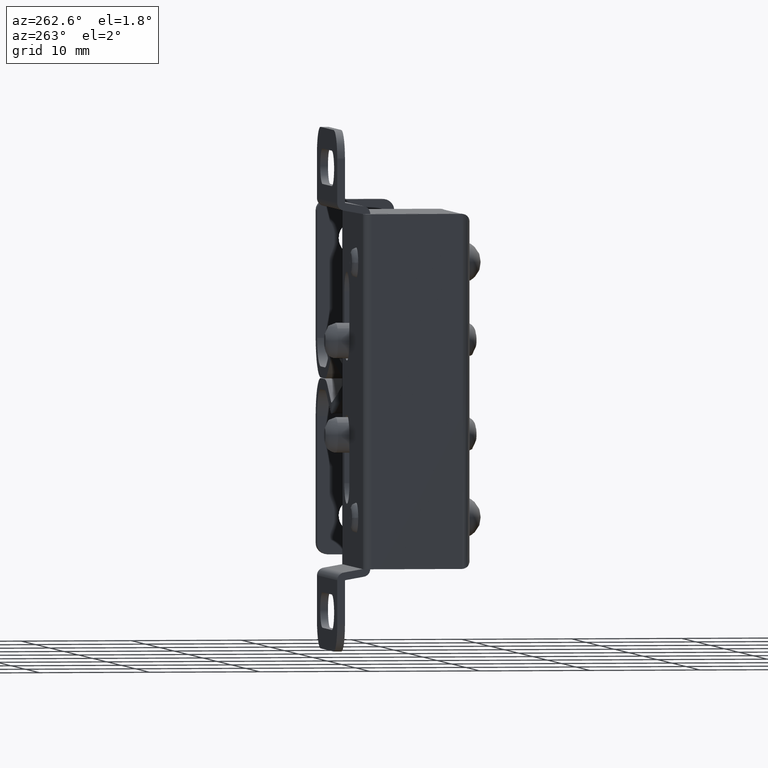
[diagram: clean part render]
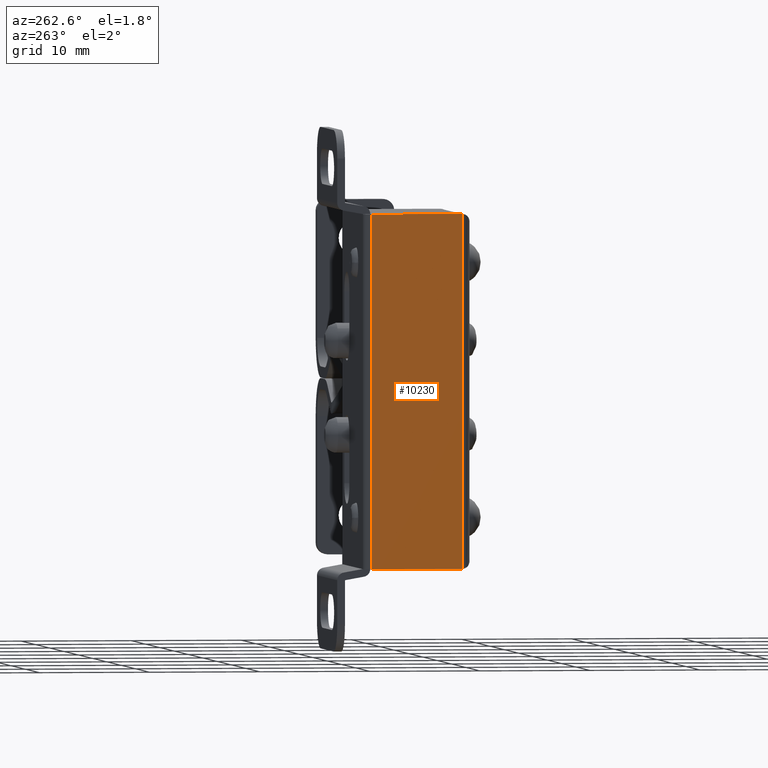
[diagram: same view with one face highlighted and labeled with its STEP entity id]
A machine part, auxiliary view. The second image highlights one B-rep face of the part: STEP entity #10230.
In plain terms, the highlighted face is a freeform B-spline surface patch.
Its self-contained STEP definition (entity closure, byte-faithful):
#7728=CARTESIAN_POINT('',(-7.849970000000190,-11.199999999999999,-4.0));
#7729=VERTEX_POINT('',#7728);
#7735=CARTESIAN_POINT('',(-7.849990666666730,-11.299991999999991,-4.006273346875859));
#7736=VERTEX_POINT('',#7735);
#7737=CARTESIAN_POINT('',(-7.849990666666730,-11.299991999999991,-4.006273346875859));
#7738=CARTESIAN_POINT('',(-7.849970000000190,-11.199999999999999,-4.0));
#7739=QUASI_UNIFORM_CURVE('',1,(#7737,#7738),.UNSPECIFIED.,.F.,.U.);
#7740=EDGE_CURVE('',#7736,#7729,#7739,.T.);
#7853=CARTESIAN_POINT('',(-7.849990666666730,-11.299991999999991,-35.993726149202267));
#7854=VERTEX_POINT('',#7853);
#7884=CARTESIAN_POINT('',(-7.849970000000190,-11.199999999999999,-36.0));
#7885=VERTEX_POINT('',#7884);
#7886=CARTESIAN_POINT('',(-7.849970000000190,-11.199999999999999,-36.0));
#7887=CARTESIAN_POINT('',(-7.849990666666730,-11.299991999999991,-35.993726149202267));
#7888=QUASI_UNIFORM_CURVE('',1,(#7886,#7887),.UNSPECIFIED.,.F.,.U.);
#7889=EDGE_CURVE('',#7885,#7854,#7888,.T.);
#9805=CARTESIAN_POINT('',(-7.849990666666730,-11.299991999999991,-35.993726149202267));
#9806=CARTESIAN_POINT('',(-7.849990666666730,-11.299991999999991,-4.006273346875859));
#9807=QUASI_UNIFORM_CURVE('',1,(#9805,#9806),.UNSPECIFIED.,.F.,.U.);
#9808=EDGE_CURVE('',#7854,#7736,#9807,.T.);
#9834=CARTESIAN_POINT('',(-7.849970000000180,-3.0,-36.0));
#9835=VERTEX_POINT('',#9834);
#9850=CARTESIAN_POINT('',(-7.849970000000180,-3.0,-4.0));
#9851=VERTEX_POINT('',#9850);
#9852=CARTESIAN_POINT('',(-7.849970000000180,-3.0,-4.0));
#9853=CARTESIAN_POINT('',(-7.849970000000180,-3.0,-36.0));
#9854=QUASI_UNIFORM_CURVE('',1,(#9852,#9853),.UNSPECIFIED.,.F.,.U.);
#9855=EDGE_CURVE('',#9851,#9835,#9854,.T.);
#10137=CARTESIAN_POINT('',(-7.849970000000190,-11.199999999999999,-36.0));
#10138=CARTESIAN_POINT('',(-7.849970000000180,-3.0,-36.0));
#10139=QUASI_UNIFORM_CURVE('',1,(#10137,#10138),.UNSPECIFIED.,.F.,.U.);
#10140=EDGE_CURVE('',#7885,#9835,#10139,.T.);
#10213=CARTESIAN_POINT('',(-7.849970000000190,-11.714576194741060,-37.598399937977803));
#10214=CARTESIAN_POINT('',(-7.849970000000190,-2.585415211597237,-37.598399937977803));
#10215=CARTESIAN_POINT('',(-7.849970000000190,-11.714576194741060,-2.401599203715326));
#10216=CARTESIAN_POINT('',(-7.849970000000190,-2.585415211597237,-2.401599203715326));
#10217=B_SPLINE_SURFACE_WITH_KNOTS('',1,1,((#10213,#10215),(#10214,#10216)),.UNSPECIFIED.,.F.,.F.,.U.,(2,2),(2,2),(0.0,9.129160983143825),(0.0,35.196800734262467),.UNSPECIFIED.);
#10218=ORIENTED_EDGE('',*,*,#10140,.F.);
#10219=ORIENTED_EDGE('',*,*,#7889,.T.);
#10220=ORIENTED_EDGE('',*,*,#9808,.T.);
#10221=ORIENTED_EDGE('',*,*,#7740,.T.);
#10222=CARTESIAN_POINT('',(-7.849970000000190,-11.199999999999999,-4.0));
#10223=CARTESIAN_POINT('',(-7.849970000000180,-3.0,-4.0));
#10224=QUASI_UNIFORM_CURVE('',1,(#10222,#10223),.UNSPECIFIED.,.F.,.U.);
#10225=EDGE_CURVE('',#7729,#9851,#10224,.T.);
#10226=ORIENTED_EDGE('',*,*,#10225,.T.);
#10227=ORIENTED_EDGE('',*,*,#9855,.T.);
#10228=EDGE_LOOP('',(#10218,#10219,#10220,#10221,#10226,#10227));
#10229=FACE_OUTER_BOUND('',#10228,.T.);
#10230=ADVANCED_FACE('',(#10229),#10217,.F.);